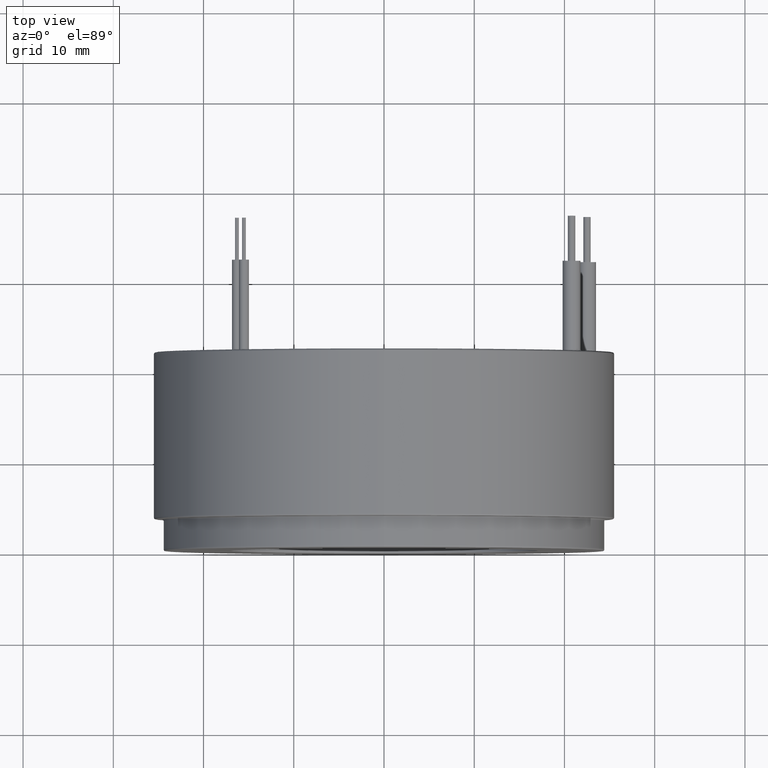
[diagram: clean part render]
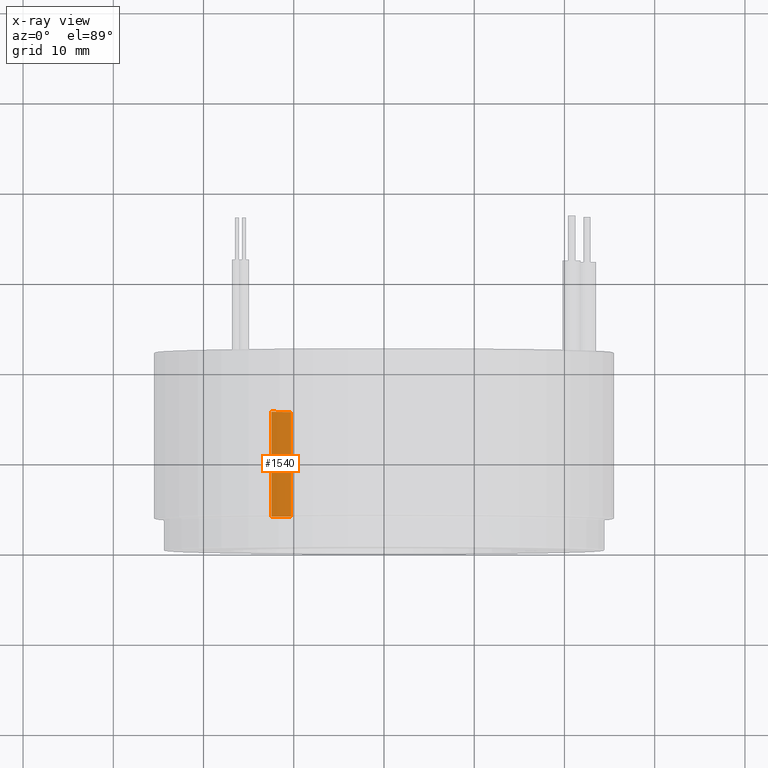
[diagram: x-ray — body ghosted, one internal face saturated and labeled with its STEP entity id]
A machine part, top view, then the same camera in x-ray: the body is ghosted and one INTERNAL B-rep face — a face not visible from any outside direction — is saturated and labeled: STEP entity #1540.
In plain terms, the highlighted cylindrical surface (partial cylindrical patch) has radius 16.5 mm, axis along (-0, -1, 0).
Its self-contained STEP definition (entity closure, byte-faithful):
#31 = DIRECTION ( 'NONE',  ( 0.0000000000000000000, 1.000000000000000000, 0.0000000000000000000 ) ) ;
#40 = ORIENTED_EDGE ( 'NONE', *, *, #1544, .T. ) ;
#129 = LINE ( 'NONE', #1792, #2764 ) ;
#137 = DIRECTION ( 'NONE',  ( 0.0000000000000000000, 0.0000000000000000000, 1.000000000000000000 ) ) ;
#335 = CIRCLE ( 'NONE', #2154, 16.50000000000000000 ) ;
#340 = CARTESIAN_POINT ( 'NONE',  ( 0.0000000000000000000, -5.800000000000001600, -16.50000000000000000 ) ) ;
#457 = DIRECTION ( 'NONE',  ( 7.105427357601001900E-015, 0.0000000000000000000, 1.000000000000000000 ) ) ;
#461 = VERTEX_POINT ( 'NONE', #340 ) ;
#529 = ORIENTED_EDGE ( 'NONE', *, *, #2641, .T. ) ;
#565 = ORIENTED_EDGE ( 'NONE', *, *, #2823, .T. ) ;
#593 = EDGE_CURVE ( 'NONE', #461, #1808, #2988, .T. ) ;
#857 = CARTESIAN_POINT ( 'NONE',  ( -3.020184101280523500, -5.800000000000001600, -16.22123571107862400 ) ) ;
#953 = CARTESIAN_POINT ( 'NONE',  ( 0.0000000000000000000, 6.000000000000000000, -16.50000000000000000 ) ) ;
#1186 = CARTESIAN_POINT ( 'NONE',  ( 0.0000000000000000000, -5.800000000000001600, 0.0000000000000000000 ) ) ;
#1228 = CARTESIAN_POINT ( 'NONE',  ( 0.0000000000000000000, 5.800000000000000700, 0.0000000000000000000 ) ) ;
#1485 = CARTESIAN_POINT ( 'NONE',  ( 0.0000000000000000000, 5.800000000000000700, -16.50000000000000000 ) ) ;
#1540 = ADVANCED_FACE ( 'NONE', ( #2082 ), #2603, .T. ) ;
#1544 = EDGE_CURVE ( 'NONE', #2542, #2299, #335, .T. ) ;
#1744 = VECTOR ( 'NONE', #2712, 1000.000000000000000 ) ;
#1792 = CARTESIAN_POINT ( 'NONE',  ( -3.020184101280523500, 6.000000000000000000, -16.22123571107862400 ) ) ;
#1808 = VERTEX_POINT ( 'NONE', #857 ) ;
#1851 = AXIS2_PLACEMENT_3D ( 'NONE', #1186, #2459, #137 ) ;
#2082 = FACE_OUTER_BOUND ( 'NONE', #2253, .T. ) ;
#2154 = AXIS2_PLACEMENT_3D ( 'NONE', #1228, #3033, #457 ) ;
#2231 = CARTESIAN_POINT ( 'NONE',  ( -3.020184101280523500, 5.800000000000000700, -16.22123571107862400 ) ) ;
#2253 = EDGE_LOOP ( 'NONE', ( #40, #529, #2559, #565 ) ) ;
#2299 = VERTEX_POINT ( 'NONE', #1485 ) ;
#2330 = AXIS2_PLACEMENT_3D ( 'NONE', #3007, #3255, #3265 ) ;
#2459 = DIRECTION ( 'NONE',  ( 0.0000000000000000000, 1.000000000000000000, 0.0000000000000000000 ) ) ;
#2542 = VERTEX_POINT ( 'NONE', #2231 ) ;
#2559 = ORIENTED_EDGE ( 'NONE', *, *, #593, .T. ) ;
#2603 = CYLINDRICAL_SURFACE ( 'NONE', #2330, 16.50000000000000000 ) ;
#2641 = EDGE_CURVE ( 'NONE', #2299, #461, #2826, .T. ) ;
#2712 = DIRECTION ( 'NONE',  ( -0.0000000000000000000, -1.000000000000000000, -0.0000000000000000000 ) ) ;
#2764 = VECTOR ( 'NONE', #31, 1000.000000000000000 ) ;
#2823 = EDGE_CURVE ( 'NONE', #1808, #2542, #129, .T. ) ;
#2826 = LINE ( 'NONE', #953, #1744 ) ;
#2988 = CIRCLE ( 'NONE', #1851, 16.50000000000000000 ) ;
#3007 = CARTESIAN_POINT ( 'NONE',  ( 0.0000000000000000000, 6.000000000000000000, 0.0000000000000000000 ) ) ;
#3033 = DIRECTION ( 'NONE',  ( -0.0000000000000000000, -1.000000000000000000, -0.0000000000000000000 ) ) ;
#3255 = DIRECTION ( 'NONE',  ( -0.0000000000000000000, -1.000000000000000000, -0.0000000000000000000 ) ) ;
#3265 = DIRECTION ( 'NONE',  ( 0.0000000000000000000, 0.0000000000000000000, -1.000000000000000000 ) ) ;